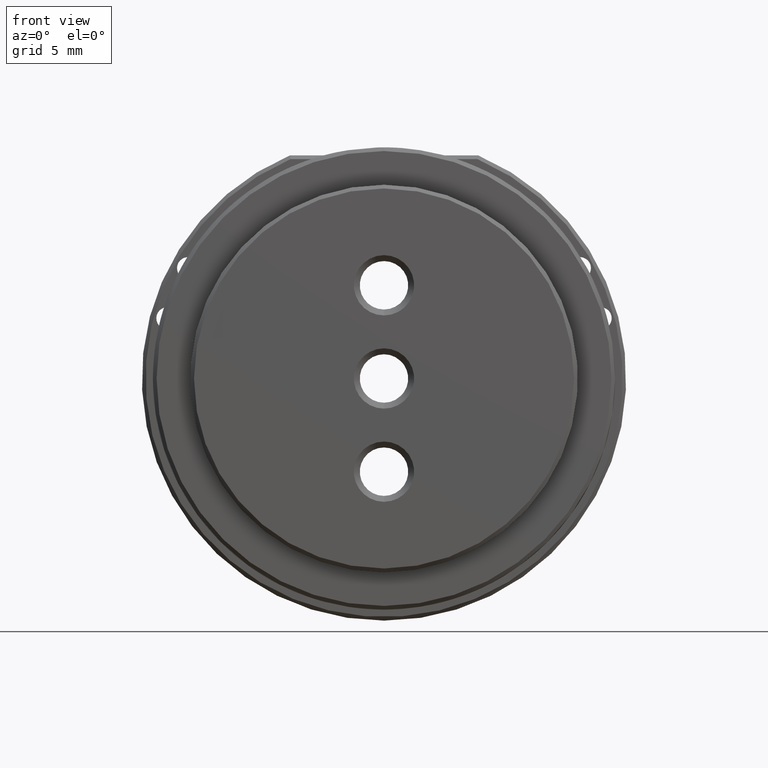
[diagram: clean part render]
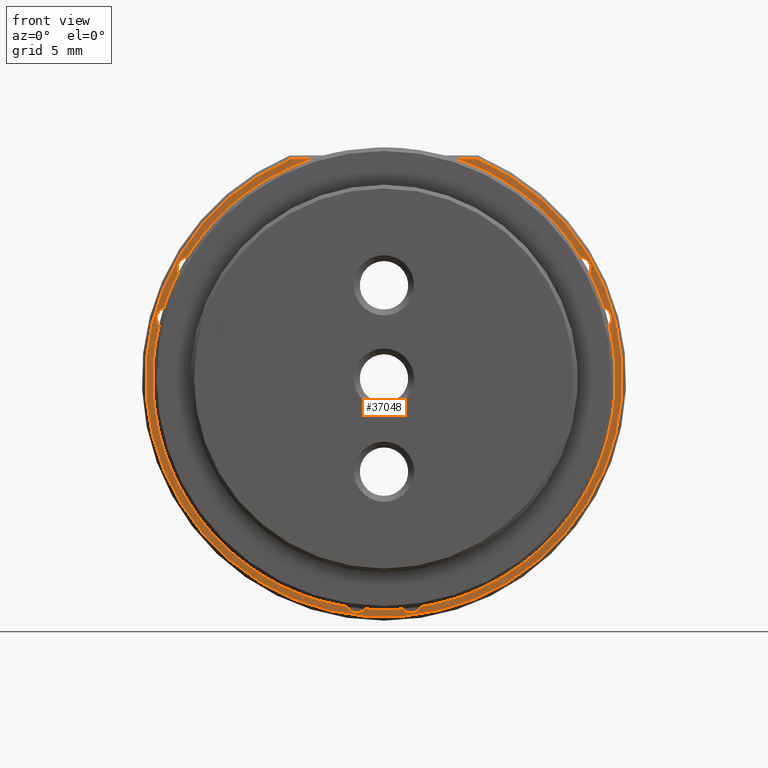
[diagram: same view with one face highlighted and labeled with its STEP entity id]
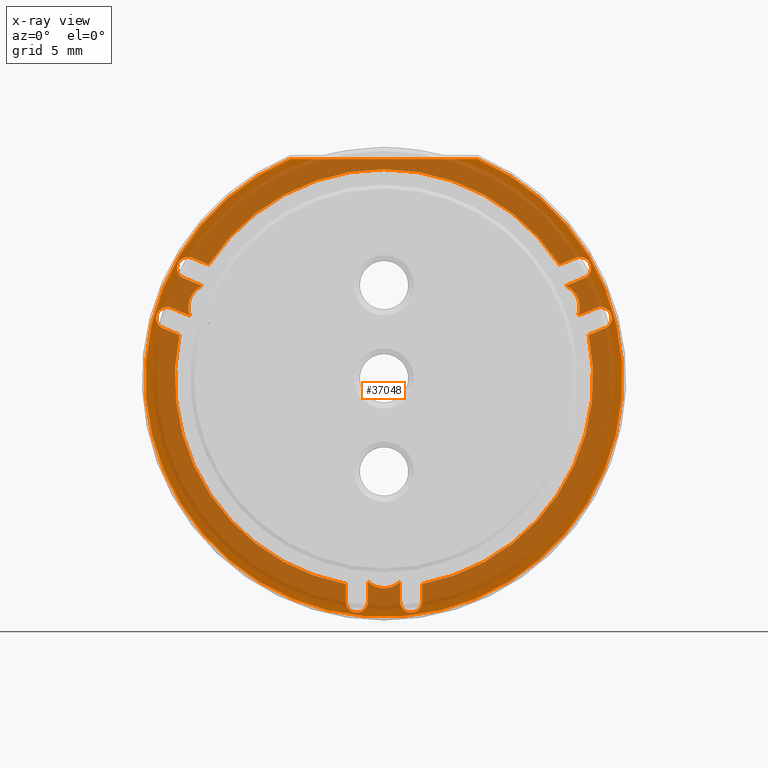
[diagram: x-ray of the same camera — body ghosted, the highlighted face saturated]
A machine part, front view. The second image highlights one B-rep face of the part: STEP entity #37048.
The next image is the same camera in x-ray: the body ghosted, the highlighted face saturated — about 74% of this face is hidden behind the body in this view.
In plain terms, the highlighted planar face has unit normal (0, -1, 0).
Its self-contained STEP definition (entity closure, byte-faithful):
#104 = CIRCLE ( 'NONE', #41348, 1.600000000000000755 ) ;
#144 = CARTESIAN_POINT ( 'NONE',  ( 14.47806152009423464, -8.118038152211919822, 4.797601929684295996 ) ) ;
#399 = CARTESIAN_POINT ( 'NONE',  ( 13.35267349922858848, -8.118038152211919822, 7.519744681725815560 ) ) ;
#400 = CARTESIAN_POINT ( 'NONE',  ( 13.94080659307243408, -8.118038152211919822, 2.952356945653131337 ) ) ;
#663 = VERTEX_POINT ( 'NONE', #56280 ) ;
#1262 = VECTOR ( 'NONE', #10672, 1000.000000000000227 ) ;
#3722 = VERTEX_POINT ( 'NONE', #49585 ) ;
#3818 = DIRECTION ( 'NONE',  ( 0.9241386311927987096, -0.000000000000000000, 0.3820573128957227560 ) ) ;
#4867 = DIRECTION ( 'NONE',  ( 0.000000000000000000, 0.000000000000000000, -1.000000000000000000 ) ) ;
#5013 = CIRCLE ( 'NONE', #60308, 16.25000000000001066 ) ;
#5689 = CARTESIAN_POINT ( 'NONE',  ( -1.847800000000102472, -8.118038152211919822, -15.21459999999983026 ) ) ;
#6447 = ORIENTED_EDGE ( 'NONE', *, *, #7261, .F. ) ;
#6547 = AXIS2_PLACEMENT_3D ( 'NONE', #64630, #41832, #48804 ) ;
#6806 = ORIENTED_EDGE ( 'NONE', *, *, #25585, .F. ) ;
#7261 = EDGE_CURVE ( 'NONE', #21613, #66374, #17110, .T. ) ;
#8196 = CARTESIAN_POINT ( 'NONE',  ( 6.368673331236172963, -8.118038152211919822, 14.95000000000017337 ) ) ;
#8252 = EDGE_CURVE ( 'NONE', #63184, #3722, #41104, .T. ) ;
#8610 = LINE ( 'NONE', #14910, #70947 ) ;
#8787 = ORIENTED_EDGE ( 'NONE', *, *, #37714, .F. ) ;
#8905 = CARTESIAN_POINT ( 'NONE',  ( -15.05114748943802994, -8.118038152211919822, 3.411393982895102095 ) ) ;
#8927 = CIRCLE ( 'NONE', #32489, 0.7499999999999988898 ) ;
#9265 = EDGE_CURVE ( 'NONE', #40590, #20699, #45563, .T. ) ;
#10032 = CARTESIAN_POINT ( 'NONE',  ( -1.041037131337824664E-13, -8.118038152211919822, 1.685092966431067047E-13 ) ) ;
#10133 = VECTOR ( 'NONE', #49618, 1000.000000000000227 ) ;
#10145 = VERTEX_POINT ( 'NONE', #63650 ) ;
#10195 = CARTESIAN_POINT ( 'NONE',  ( 1.847799999999889087, -8.118038152211919822, -15.21459999999983026 ) ) ;
#10294 = CARTESIAN_POINT ( 'NONE',  ( -1.025484116988653351E-13, -8.118038152211919822, -12.69999999999983054 ) ) ;
#10402 = FACE_BOUND ( 'NONE', #21716, .T. ) ;
#10487 = DIRECTION ( 'NONE',  ( 0.000000000000000000, 0.000000000000000000, -1.000000000000000000 ) ) ;
#10672 = DIRECTION ( 'NONE',  ( 0.9241386311927985986, 0.000000000000000000, -0.3820573128957230336 ) ) ;
#10695 = DIRECTION ( 'NONE',  ( 0.000000000000000000, -1.000000000000000000, 0.000000000000000000 ) ) ;
#11058 = EDGE_CURVE ( 'NONE', #66374, #68528, #39824, .T. ) ;
#11457 = VERTEX_POINT ( 'NONE', #28157 ) ;
#11985 = CARTESIAN_POINT ( 'NONE',  ( -13.06613051455700258, -8.118038152211919822, 8.212848655120408736 ) ) ;
#12348 = AXIS2_PLACEMENT_3D ( 'NONE', #42087, #30620, #37288 ) ;
#12413 = CARTESIAN_POINT ( 'NONE',  ( -14.47806152009444425, -8.118038152211919822, 4.797601929684301325 ) ) ;
#13027 = CARTESIAN_POINT ( 'NONE',  ( 2.597799999999889309, -8.118038152211919822, -14.01120748401062599 ) ) ;
#13175 = VERTEX_POINT ( 'NONE', #48603 ) ;
#13255 = CARTESIAN_POINT ( 'NONE',  ( 2.597799999999888865, -8.118038152211919822, -15.21459999999983204 ) ) ;
#13299 = EDGE_CURVE ( 'NONE', #42924, #56914, #57724, .T. ) ;
#13635 = ORIENTED_EDGE ( 'NONE', *, *, #8252, .F. ) ;
#14022 = EDGE_CURVE ( 'NONE', #70823, #11457, #8927, .T. ) ;
#14684 = ORIENTED_EDGE ( 'NONE', *, *, #64585, .T. ) ;
#14856 = DIRECTION ( 'NONE',  ( 0.000000000000000000, -1.000000000000000000, 0.000000000000000000 ) ) ;
#14910 = CARTESIAN_POINT ( 'NONE',  ( 15.05114748943782033, -8.118038152211919822, 3.411393982895096766 ) ) ;
#15537 = VERTEX_POINT ( 'NONE', #43084 ) ;
#15609 = CARTESIAN_POINT ( 'NONE',  ( -14.76460450476623620, -8.118038152211919822, 4.104497956289701932 ) ) ;
#16020 = CARTESIAN_POINT ( 'NONE',  ( -13.94080659307264192, -8.118038152211919822, 2.952356945653135778 ) ) ;
#16174 = DIRECTION ( 'NONE',  ( 0.9241386311927977104, -0.000000000000000000, 0.3820573128957253095 ) ) ;
#16175 = AXIS2_PLACEMENT_3D ( 'NONE', #68678, #24079, #67959 ) ;
#16244 = CARTESIAN_POINT ( 'NONE',  ( 1.847799999999889087, -8.118038152211919822, -15.96459999999982848 ) ) ;
#16591 = CARTESIAN_POINT ( 'NONE',  ( -15.05114748943802994, -8.118038152211919822, 3.411393982895102095 ) ) ;
#16677 = DIRECTION ( 'NONE',  ( -0.000000000000000000, 1.000000000000000000, -0.000000000000000000 ) ) ;
#17024 = DIRECTION ( 'NONE',  ( 0.000000000000000000, -1.000000000000000000, 0.000000000000000000 ) ) ;
#17093 = EDGE_LOOP ( 'NONE', ( #30772, #69099 ) ) ;
#17110 = LINE ( 'NONE', #144, #17345 ) ;
#17175 = VECTOR ( 'NONE', #47080, 1000.000000000000114 ) ;
#17345 = VECTOR ( 'NONE', #38548, 1000.000000000000227 ) ;
#17355 = EDGE_CURVE ( 'NONE', #22324, #50370, #42084, .T. ) ;
#17638 = DIRECTION ( 'NONE',  ( -0.000000000000000000, -0.000000000000000000, -1.000000000000000000 ) ) ;
#18297 = VECTOR ( 'NONE', #21068, 1000.000000000000000 ) ;
#18449 = ORIENTED_EDGE ( 'NONE', *, *, #48839, .F. ) ;
#18741 = CARTESIAN_POINT ( 'NONE',  ( -2.597800000000102472, -8.118038152211919822, -15.21459999999983204 ) ) ;
#19225 = VERTEX_POINT ( 'NONE', #53474 ) ;
#19511 = CIRCLE ( 'NONE', #6547, 14.25000000000000178 ) ;
#19720 = DIRECTION ( 'NONE',  ( 0.000000000000000000, 0.000000000000000000, 1.000000000000000000 ) ) ;
#20090 = DIRECTION ( 'NONE',  ( 0.000000000000000000, -1.000000000000000000, 0.000000000000000000 ) ) ;
#20469 = CARTESIAN_POINT ( 'NONE',  ( 2.597799999999888865, -8.118038152211919822, -15.21459999999983204 ) ) ;
#20548 = DIRECTION ( 'NONE',  ( 0.000000000000000000, 0.000000000000000000, -1.000000000000000000 ) ) ;
#20699 = VERTEX_POINT ( 'NONE', #51974 ) ;
#21068 = DIRECTION ( 'NONE',  ( -1.000000000000000000, 0.000000000000000000, 0.000000000000000000 ) ) ;
#21563 = DIRECTION ( 'NONE',  ( 0.000000000000000000, -1.000000000000000000, 0.000000000000000000 ) ) ;
#21613 = VERTEX_POINT ( 'NONE', #41834 ) ;
#21716 = EDGE_LOOP ( 'NONE', ( #70522, #41783, #38870, #39729, #68705, #44235, #6447, #61447, #33071, #24731, #18449, #66404, #51360, #13635, #6806, #45773, #70826, #53968, #43325, #14684, #45935, #8787, #48985, #71553, #22767, #63710 ) ) ;
#22053 = AXIS2_PLACEMENT_3D ( 'NONE', #5689, #21563, #10487 ) ;
#22324 = VERTEX_POINT ( 'NONE', #39465 ) ;
#22767 = ORIENTED_EDGE ( 'NONE', *, *, #34305, .F. ) ;
#23717 = DIRECTION ( 'NONE',  ( 0.9241386311927979325, 0.000000000000000000, -0.3820573128957249764 ) ) ;
#24059 = CIRCLE ( 'NONE', #71150, 14.25000000000000178 ) ;
#24079 = DIRECTION ( 'NONE',  ( -0.000000000000000000, 1.000000000000000000, -0.000000000000000000 ) ) ;
#24270 = EDGE_CURVE ( 'NONE', #72101, #10145, #47134, .T. ) ;
#24595 = VERTEX_POINT ( 'NONE', #8905 ) ;
#24731 = ORIENTED_EDGE ( 'NONE', *, *, #42515, .T. ) ;
#24802 = DIRECTION ( 'NONE',  ( 0.000000000000000000, 0.000000000000000000, -1.000000000000000000 ) ) ;
#25128 = CIRCLE ( 'NONE', #55707, 0.7500000000000006661 ) ;
#25216 = DIRECTION ( 'NONE',  ( 0.000000000000000000, -1.000000000000000000, 0.000000000000000000 ) ) ;
#25585 = EDGE_CURVE ( 'NONE', #20699, #63184, #104, .T. ) ;
#25943 = AXIS2_PLACEMENT_3D ( 'NONE', #53600, #20090, #19720 ) ;
#26041 = DIRECTION ( 'NONE',  ( 0.000000000000000000, -1.000000000000000000, 0.000000000000000000 ) ) ;
#26119 = CARTESIAN_POINT ( 'NONE',  ( 13.63921648390038399, -8.118038152211919822, 6.826640708331218832 ) ) ;
#26306 = VERTEX_POINT ( 'NONE', #8196 ) ;
#26713 = CARTESIAN_POINT ( 'NONE',  ( -6.368673331236381685, -8.118038152211919822, 14.95000000000017337 ) ) ;
#26836 = AXIS2_PLACEMENT_3D ( 'NONE', #30371, #52833, #24802 ) ;
#27656 = CARTESIAN_POINT ( 'NONE',  ( -6.419501538281731534, -8.118038152211919822, 14.95000000000017337 ) ) ;
#27708 = DIRECTION ( 'NONE',  ( 0.000000000000000000, 0.000000000000000000, -1.000000000000000000 ) ) ;
#27845 = LINE ( 'NONE', #11985, #10133 ) ;
#28022 = LINE ( 'NONE', #27656, #18297 ) ;
#28157 = CARTESIAN_POINT ( 'NONE',  ( -1.847800000000102472, -8.118038152211919822, -15.96459999999982848 ) ) ;
#30371 = CARTESIAN_POINT ( 'NONE',  ( 11.73479999999989509, -8.118038152211919822, 4.851400000000167800 ) ) ;
#30620 = DIRECTION ( 'NONE',  ( 0.000000000000000000, -1.000000000000000000, 0.000000000000000000 ) ) ;
#30772 = ORIENTED_EDGE ( 'NONE', *, *, #67792, .T. ) ;
#32279 = AXIS2_PLACEMENT_3D ( 'NONE', #54297, #61260, #72717 ) ;
#32489 = AXIS2_PLACEMENT_3D ( 'NONE', #33068, #26041, #20548 ) ;
#33057 = EDGE_CURVE ( 'NONE', #24595, #40680, #38747, .T. ) ;
#33068 = CARTESIAN_POINT ( 'NONE',  ( -1.847800000000102472, -8.118038152211919822, -15.21459999999983026 ) ) ;
#33071 = ORIENTED_EDGE ( 'NONE', *, *, #57860, .F. ) ;
#33476 = VECTOR ( 'NONE', #17638, 1000.000000000000000 ) ;
#33621 = VERTEX_POINT ( 'NONE', #16244 ) ;
#34305 = EDGE_CURVE ( 'NONE', #10145, #15537, #45526, .T. ) ;
#34348 = VERTEX_POINT ( 'NONE', #13027 ) ;
#34497 = CARTESIAN_POINT ( 'NONE',  ( -1.097800000000102694, -8.118038152211919822, -15.21459999999983204 ) ) ;
#34656 = AXIS2_PLACEMENT_3D ( 'NONE', #10032, #14856, #65693 ) ;
#35021 = CIRCLE ( 'NONE', #22053, 0.7499999999999988898 ) ;
#35200 = DIRECTION ( 'NONE',  ( -3.903127820947815962E-16, -0.000000000000000000, -1.000000000000000000 ) ) ;
#35820 = CIRCLE ( 'NONE', #32279, 1.599999999999999867 ) ;
#36066 = AXIS2_PLACEMENT_3D ( 'NONE', #10195, #50006, #55159 ) ;
#36978 = CARTESIAN_POINT ( 'NONE',  ( -2.597800000000102472, -8.118038152211919822, -15.21459999999983204 ) ) ;
#37048 = ADVANCED_FACE ( 'NONE', ( #38467, #10402 ), #49138, .T. ) ;
#37288 = DIRECTION ( 'NONE',  ( 0.000000000000000000, 0.000000000000000000, 1.000000000000000000 ) ) ;
#37643 = EDGE_CURVE ( 'NONE', #15537, #42924, #35820, .T. ) ;
#37714 = EDGE_CURVE ( 'NONE', #56914, #24595, #71084, .T. ) ;
#38467 = FACE_OUTER_BOUND ( 'NONE', #17093, .T. ) ;
#38548 = DIRECTION ( 'NONE',  ( -0.9241386311927988206, 0.000000000000000000, -0.3820573128957225895 ) ) ;
#38691 = LINE ( 'NONE', #26119, #58181 ) ;
#38747 = LINE ( 'NONE', #16591, #1262 ) ;
#38782 = EDGE_CURVE ( 'NONE', #68528, #13175, #38691, .T. ) ;
#38870 = ORIENTED_EDGE ( 'NONE', *, *, #65008, .F. ) ;
#39353 = AXIS2_PLACEMENT_3D ( 'NONE', #15609, #55377, #71246 ) ;
#39465 = CARTESIAN_POINT ( 'NONE',  ( -11.95578961819161812, -8.118038152211919822, 7.753811617878441531 ) ) ;
#39672 = DIRECTION ( 'NONE',  ( 0.000000000000000000, 0.000000000000000000, 1.000000000000000000 ) ) ;
#39729 = ORIENTED_EDGE ( 'NONE', *, *, #63648, .F. ) ;
#39824 = CIRCLE ( 'NONE', #26836, 1.599999999999999867 ) ;
#39854 = EDGE_CURVE ( 'NONE', #19225, #21613, #25128, .T. ) ;
#40590 = VERTEX_POINT ( 'NONE', #42254 ) ;
#40680 = VERTEX_POINT ( 'NONE', #16020 ) ;
#41104 = LINE ( 'NONE', #41453, #71377 ) ;
#41348 = AXIS2_PLACEMENT_3D ( 'NONE', #10294, #49391, #59695 ) ;
#41453 = CARTESIAN_POINT ( 'NONE',  ( 1.097799999999888865, -8.118038152211919822, -15.21459999999983204 ) ) ;
#41783 = ORIENTED_EDGE ( 'NONE', *, *, #17355, .T. ) ;
#41832 = DIRECTION ( 'NONE',  ( -0.000000000000000000, 1.000000000000000000, -0.000000000000000000 ) ) ;
#41834 = CARTESIAN_POINT ( 'NONE',  ( 14.47806152009423464, -8.118038152211919822, 4.797601929684295996 ) ) ;
#41877 = DIRECTION ( 'NONE',  ( 3.469446951953614682E-16, 0.000000000000000000, 1.000000000000000000 ) ) ;
#42084 = CIRCLE ( 'NONE', #16175, 14.25000000000000000 ) ;
#42087 = CARTESIAN_POINT ( 'NONE',  ( 1.847799999999889087, -8.118038152211919822, -15.21459999999983026 ) ) ;
#42254 = CARTESIAN_POINT ( 'NONE',  ( -1.097800000000102694, -8.118038152211919822, -15.21459999999983204 ) ) ;
#42515 = EDGE_CURVE ( 'NONE', #49737, #34348, #19511, .T. ) ;
#42616 = LINE ( 'NONE', #20469, #47793 ) ;
#42918 = VERTEX_POINT ( 'NONE', #49066 ) ;
#42924 = VERTEX_POINT ( 'NONE', #49790 ) ;
#42976 = CARTESIAN_POINT ( 'NONE',  ( 14.76460450476602837, -8.118038152211919822, 4.104497956289697491 ) ) ;
#43084 = CARTESIAN_POINT ( 'NONE',  ( -12.39105069688242722, -8.118038152211919822, 6.310624116728461352 ) ) ;
#43134 = EDGE_CURVE ( 'NONE', #22324, #72101, #27845, .T. ) ;
#43325 = ORIENTED_EDGE ( 'NONE', *, *, #62331, .F. ) ;
#43399 = CARTESIAN_POINT ( 'NONE',  ( -14.47806152009444425, -8.118038152211919822, 4.797601929684301325 ) ) ;
#43588 = DIRECTION ( 'NONE',  ( 0.000000000000000000, 0.000000000000000000, -1.000000000000000000 ) ) ;
#44235 = ORIENTED_EDGE ( 'NONE', *, *, #11058, .F. ) ;
#45526 = LINE ( 'NONE', #67956, #49599 ) ;
#45563 = LINE ( 'NONE', #34497, #53684 ) ;
#45673 = VERTEX_POINT ( 'NONE', #26713 ) ;
#45773 = ORIENTED_EDGE ( 'NONE', *, *, #9265, .F. ) ;
#45935 = ORIENTED_EDGE ( 'NONE', *, *, #33057, .F. ) ;
#46421 = CIRCLE ( 'NONE', #58209, 0.7500000000000015543 ) ;
#46955 = CARTESIAN_POINT ( 'NONE',  ( 1.097799999999889531, -8.118038152211919822, -13.86397386568583556 ) ) ;
#47080 = DIRECTION ( 'NONE',  ( -0.9241386311927987096, -0.000000000000000000, 0.3820573128957228115 ) ) ;
#47134 = CIRCLE ( 'NONE', #25943, 0.7500000000000015543 ) ;
#47751 = DIRECTION ( 'NONE',  ( 0.000000000000000000, 0.000000000000000000, 1.000000000000000000 ) ) ;
#47793 = VECTOR ( 'NONE', #41877, 1000.000000000000000 ) ;
#48247 = CARTESIAN_POINT ( 'NONE',  ( 13.06613051455679120, -8.118038152211919822, 8.212848655120417618 ) ) ;
#48603 = CARTESIAN_POINT ( 'NONE',  ( 13.63921648390038399, -8.118038152211919822, 6.826640708331218832 ) ) ;
#48609 = DIRECTION ( 'NONE',  ( -0.9241386311927978214, 0.000000000000000000, -0.3820573128957253650 ) ) ;
#48677 = EDGE_CURVE ( 'NONE', #3722, #33621, #63050, .T. ) ;
#48804 = DIRECTION ( 'NONE',  ( -1.776356839400250070E-15, 0.000000000000000000, -1.000000000000000000 ) ) ;
#48839 = EDGE_CURVE ( 'NONE', #67974, #34348, #42616, .T. ) ;
#48985 = ORIENTED_EDGE ( 'NONE', *, *, #13299, .F. ) ;
#49066 = CARTESIAN_POINT ( 'NONE',  ( 13.06613051455679120, -8.118038152211919822, 8.212848655120417618 ) ) ;
#49138 = PLANE ( 'NONE',  #34656 ) ;
#49391 = DIRECTION ( 'NONE',  ( 0.000000000000000000, -1.000000000000000000, 0.000000000000000000 ) ) ;
#49585 = CARTESIAN_POINT ( 'NONE',  ( 1.097799999999888865, -8.118038152211919822, -15.21459999999983204 ) ) ;
#49599 = VECTOR ( 'NONE', #23717, 1000.000000000000000 ) ;
#49618 = DIRECTION ( 'NONE',  ( -0.9241386311927979325, -0.000000000000000000, 0.3820573128957246989 ) ) ;
#49737 = VERTEX_POINT ( 'NONE', #400 ) ;
#49790 = CARTESIAN_POINT ( 'NONE',  ( -13.22989573307627786, -8.118038152211919822, 4.281585338081555392 ) ) ;
#50006 = DIRECTION ( 'NONE',  ( 0.000000000000000000, -1.000000000000000000, 0.000000000000000000 ) ) ;
#50370 = VERTEX_POINT ( 'NONE', #67880 ) ;
#51360 = ORIENTED_EDGE ( 'NONE', *, *, #48677, .F. ) ;
#51897 = LINE ( 'NONE', #18741, #33476 ) ;
#51974 = CARTESIAN_POINT ( 'NONE',  ( -1.097800000000102694, -8.118038152211919822, -13.86397386568582846 ) ) ;
#52833 = DIRECTION ( 'NONE',  ( 0.000000000000000000, -1.000000000000000000, 0.000000000000000000 ) ) ;
#53375 = LINE ( 'NONE', #48247, #65242 ) ;
#53474 = CARTESIAN_POINT ( 'NONE',  ( 15.05114748943782033, -8.118038152211919822, 3.411393982895096766 ) ) ;
#53600 = CARTESIAN_POINT ( 'NONE',  ( -13.35267349922879987, -8.118038152211919822, 7.519744681725808455 ) ) ;
#53684 = VECTOR ( 'NONE', #39672, 1000.000000000000000 ) ;
#53723 = EDGE_CURVE ( 'NONE', #11457, #40590, #35021, .T. ) ;
#53968 = ORIENTED_EDGE ( 'NONE', *, *, #14022, .F. ) ;
#54297 = CARTESIAN_POINT ( 'NONE',  ( -11.73480000000010648, -8.118038152211919822, 4.851400000000167800 ) ) ;
#55159 = DIRECTION ( 'NONE',  ( 0.000000000000000000, 0.000000000000000000, 1.000000000000000000 ) ) ;
#55356 = CARTESIAN_POINT ( 'NONE',  ( -1.041037131337824664E-13, -8.118038152211919822, 1.685092966431067047E-13 ) ) ;
#55377 = DIRECTION ( 'NONE',  ( 0.000000000000000000, -1.000000000000000000, 0.000000000000000000 ) ) ;
#55707 = AXIS2_PLACEMENT_3D ( 'NONE', #42976, #25216, #47751 ) ;
#56280 = CARTESIAN_POINT ( 'NONE',  ( -2.597800000000102472, -8.118038152211919822, -14.01120748401062421 ) ) ;
#56914 = VERTEX_POINT ( 'NONE', #43399 ) ;
#57600 = EDGE_CURVE ( 'NONE', #45673, #26306, #5013, .T. ) ;
#57724 = LINE ( 'NONE', #12413, #17175 ) ;
#57860 = EDGE_CURVE ( 'NONE', #49737, #19225, #8610, .T. ) ;
#58181 = VECTOR ( 'NONE', #16174, 1000.000000000000114 ) ;
#58209 = AXIS2_PLACEMENT_3D ( 'NONE', #399, #17024, #27708 ) ;
#59233 = CARTESIAN_POINT ( 'NONE',  ( 12.39105069688220873, -8.118038152211919822, 6.310624116728464905 ) ) ;
#59695 = DIRECTION ( 'NONE',  ( 0.000000000000000000, 0.000000000000000000, -1.000000000000000000 ) ) ;
#60308 = AXIS2_PLACEMENT_3D ( 'NONE', #60457, #10695, #43588 ) ;
#60457 = CARTESIAN_POINT ( 'NONE',  ( -1.041037131337824664E-13, -8.118038152211919822, 1.685092966431067047E-13 ) ) ;
#60757 = CARTESIAN_POINT ( 'NONE',  ( -13.06613051455700258, -8.118038152211919822, 8.212848655120408736 ) ) ;
#61260 = DIRECTION ( 'NONE',  ( 0.000000000000000000, -1.000000000000000000, 0.000000000000000000 ) ) ;
#61447 = ORIENTED_EDGE ( 'NONE', *, *, #39854, .F. ) ;
#61777 = CIRCLE ( 'NONE', #12348, 0.7500000000000006661 ) ;
#62331 = EDGE_CURVE ( 'NONE', #663, #70823, #51897, .T. ) ;
#63050 = CIRCLE ( 'NONE', #36066, 0.7500000000000006661 ) ;
#63184 = VERTEX_POINT ( 'NONE', #46955 ) ;
#63648 = EDGE_CURVE ( 'NONE', #13175, #42918, #46421, .T. ) ;
#63650 = CARTESIAN_POINT ( 'NONE',  ( -13.63921648390059538, -8.118038152211919822, 6.826640708331211727 ) ) ;
#63710 = ORIENTED_EDGE ( 'NONE', *, *, #24270, .F. ) ;
#64585 = EDGE_CURVE ( 'NONE', #663, #40680, #24059, .T. ) ;
#64630 = CARTESIAN_POINT ( 'NONE',  ( -1.041037131337824664E-13, -8.118038152211919822, 1.685092966431067047E-13 ) ) ;
#65008 = EDGE_CURVE ( 'NONE', #42918, #50370, #53375, .T. ) ;
#65242 = VECTOR ( 'NONE', #48609, 999.9999999999998863 ) ;
#65693 = DIRECTION ( 'NONE',  ( 0.000000000000000000, -0.000000000000000000, -1.000000000000000000 ) ) ;
#66374 = VERTEX_POINT ( 'NONE', #69671 ) ;
#66382 = EDGE_CURVE ( 'NONE', #33621, #67974, #61777, .T. ) ;
#66404 = ORIENTED_EDGE ( 'NONE', *, *, #66382, .F. ) ;
#67792 = EDGE_CURVE ( 'NONE', #26306, #45673, #28022, .T. ) ;
#67880 = CARTESIAN_POINT ( 'NONE',  ( 11.95578961819140318, -8.118038152211919822, 7.753811617878448637 ) ) ;
#67956 = CARTESIAN_POINT ( 'NONE',  ( -13.63921648390059538, -8.118038152211919822, 6.826640708331211727 ) ) ;
#67959 = DIRECTION ( 'NONE',  ( 0.000000000000000000, 0.000000000000000000, -1.000000000000000000 ) ) ;
#67974 = VERTEX_POINT ( 'NONE', #13255 ) ;
#68528 = VERTEX_POINT ( 'NONE', #59233 ) ;
#68678 = CARTESIAN_POINT ( 'NONE',  ( -1.041037131337824664E-13, -8.118038152211919822, 1.685092966431067047E-13 ) ) ;
#68705 = ORIENTED_EDGE ( 'NONE', *, *, #38782, .F. ) ;
#69099 = ORIENTED_EDGE ( 'NONE', *, *, #57600, .T. ) ;
#69671 = CARTESIAN_POINT ( 'NONE',  ( 13.22989573307606292, -8.118038152211919822, 4.281585338081548286 ) ) ;
#70522 = ORIENTED_EDGE ( 'NONE', *, *, #43134, .F. ) ;
#70823 = VERTEX_POINT ( 'NONE', #36978 ) ;
#70826 = ORIENTED_EDGE ( 'NONE', *, *, #53723, .F. ) ;
#70947 = VECTOR ( 'NONE', #3818, 1000.000000000000114 ) ;
#71084 = CIRCLE ( 'NONE', #39353, 0.7500000000000011102 ) ;
#71150 = AXIS2_PLACEMENT_3D ( 'NONE', #55356, #16677, #4867 ) ;
#71246 = DIRECTION ( 'NONE',  ( 0.000000000000000000, 0.000000000000000000, -1.000000000000000000 ) ) ;
#71377 = VECTOR ( 'NONE', #35200, 1000.000000000000000 ) ;
#71553 = ORIENTED_EDGE ( 'NONE', *, *, #37643, .F. ) ;
#72101 = VERTEX_POINT ( 'NONE', #60757 ) ;
#72717 = DIRECTION ( 'NONE',  ( 0.000000000000000000, 0.000000000000000000, -1.000000000000000000 ) ) ;